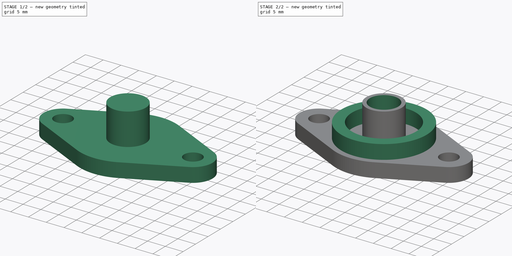
[diagram: build sequence overview — one tinted view per stage of 2, left to right]
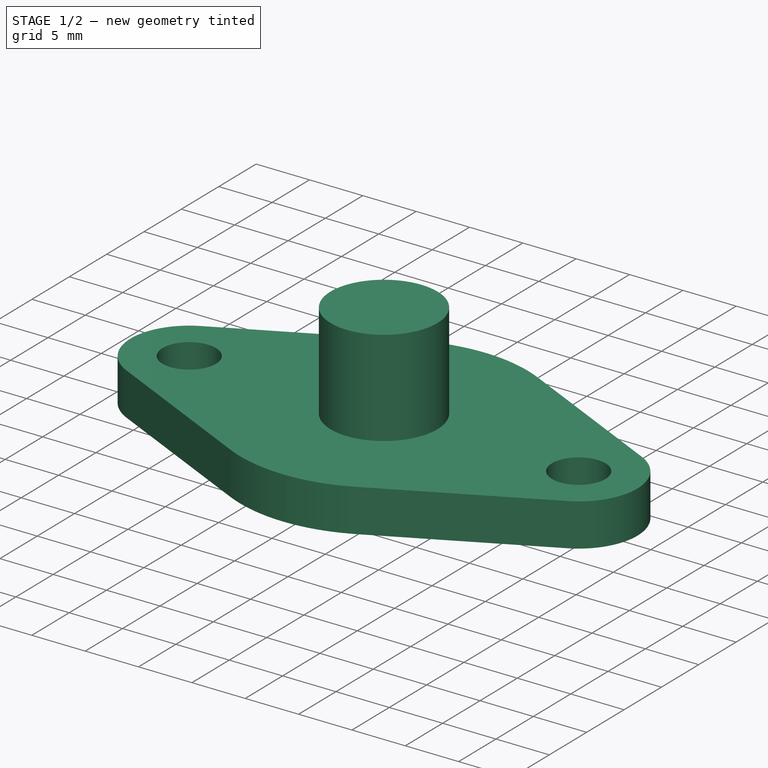
[diagram: stage 1 of 2 — iso view after this stage's code; geometry added in this stage tinted green]
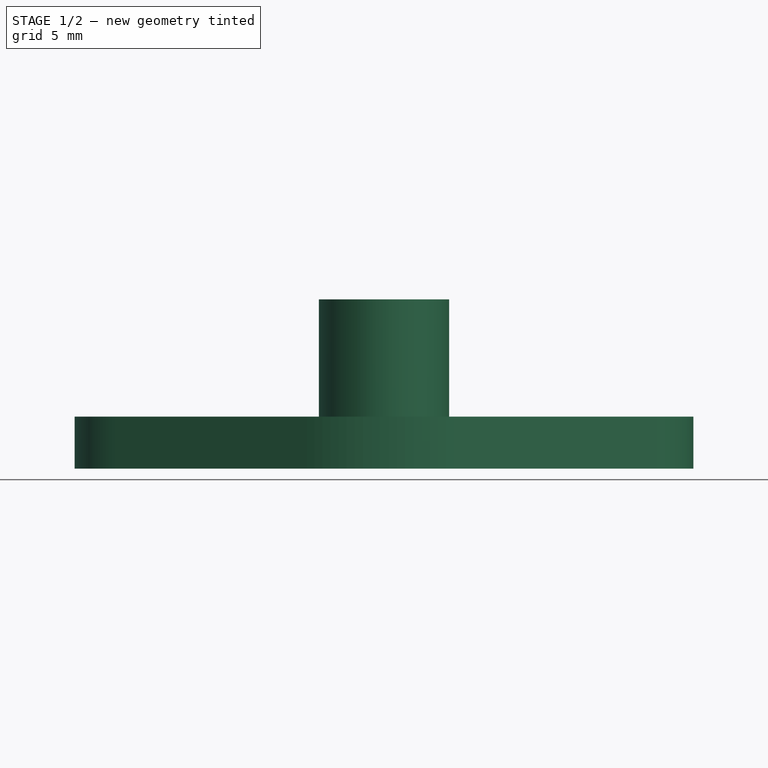
[diagram: stage 1 of 2 — front view after this stage's code; geometry added in this stage tinted green]
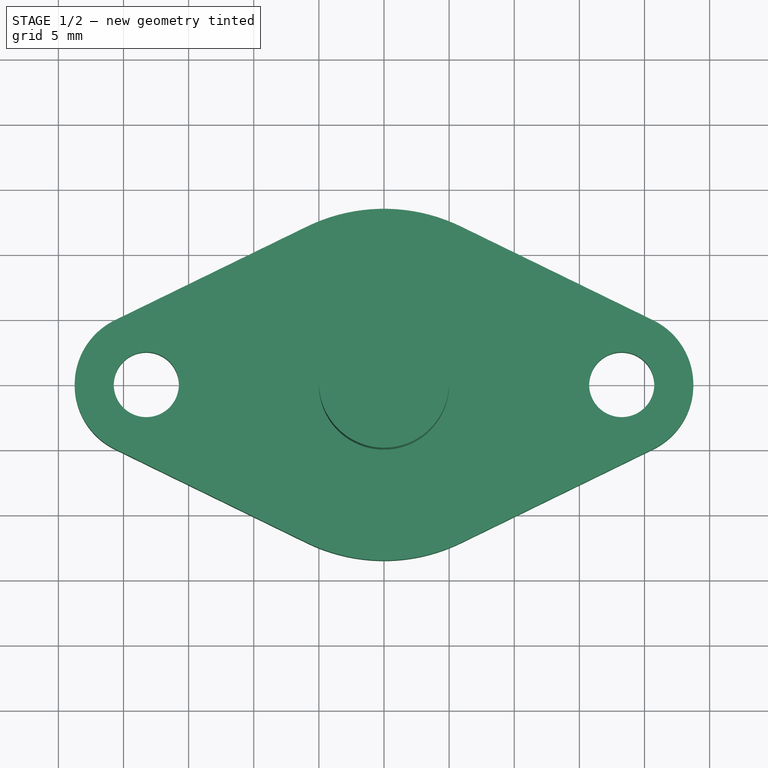
[diagram: stage 1 of 2 — top view after this stage's code; geometry added in this stage tinted green]
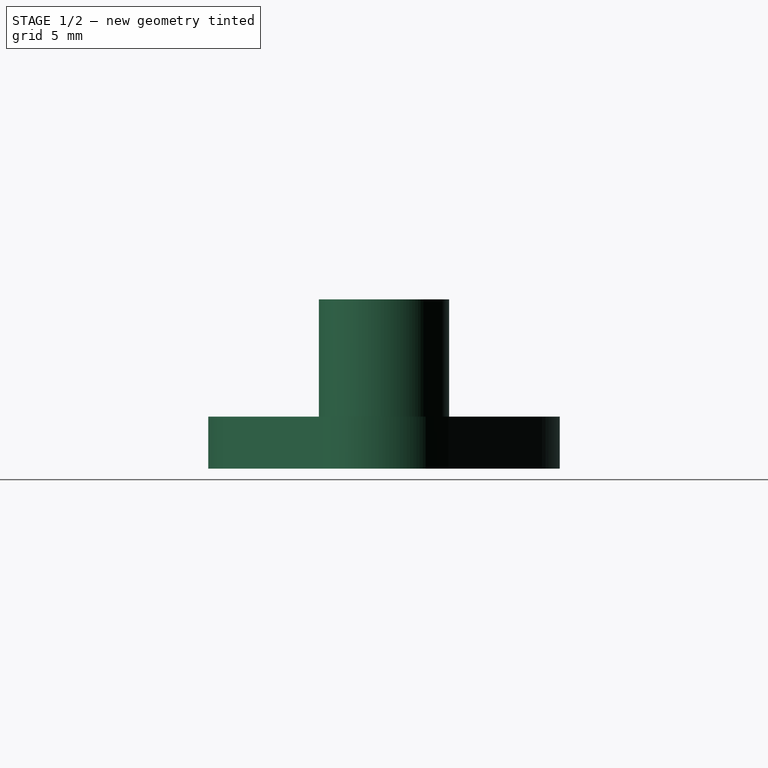
[diagram: stage 1 of 2 — right view after this stage's code; geometry added in this stage tinted green]
FCSTD DOCUMENT  (FreeCAD 0.18R14555 (Git shallow))
Label: pillow-bearing
License: All rights reserved
LicenseURL: http://en.wikipedia.org/wiki/All_rights_reserved
objects: Sketcher::SketchObject×4, PartDesign::Pad×3, PartDesign::Pocket×1, PartDesign::Body×1
note: 13 computed .brp shape members not serialized (recipe doc carries the construction recipe); baked Part::Feature solids carry a one-line shape summary decoded from their .brp

FEATURE [Sketcher::SketchObject] Sketch
  MapMode = 5
  Support = -> [XY_Plane]
  sketch-geometry (14):
    g0: Circle CenterX=-18.25 CenterY=0 CenterZ=0 NormalX=0 NormalY=0 NormalZ=1 AngleXU=0 Radius=2.5
    g1: Circle CenterX=18.25 CenterY=0 CenterZ=0 NormalX=0 NormalY=0 NormalZ=1 AngleXU=0 Radius=2.5
    g2: ArcOfCircle CenterX=-18.25 CenterY=0 CenterZ=0 NormalX=0 NormalY=0 NormalZ=1 AngleXU=0 Radius=5.5 StartAngle=2.02457 EndAngle=4.25862
    g3: ArcOfCircle CenterX=18.25 CenterY=0 CenterZ=0 NormalX=0 NormalY=0 NormalZ=1 AngleXU=0 Radius=5.5 StartAngle=5.16616 EndAngle=7.40021
    g4: ArcOfCircle CenterX=0 CenterY=0 CenterZ=0 NormalX=0 NormalY=0 NormalZ=1 AngleXU=0 Radius=13.5 StartAngle=1.11703 EndAngle=2.02457
    g5: ArcOfCircle CenterX=0 CenterY=0 CenterZ=0 NormalX=0 NormalY=0 NormalZ=1 AngleXU=0 Radius=13.5 StartAngle=4.25862 EndAngle=5.16616
    g6: LineSegment StartX=-20.661 StartY=4.94341 StartZ=0 EndX=-5.91781 EndY=12.1338 EndZ=0
    g7: LineSegment StartX=5.91781 StartY=12.1338 StartZ=0 EndX=20.661 EndY=4.94341 EndZ=0
    g8: LineSegment StartX=20.661 StartY=-4.94341 StartZ=0 EndX=5.91781 EndY=-12.1338 EndZ=0
    g9: LineSegment StartX=-5.91781 StartY=-12.1338 StartZ=0 EndX=-20.661 EndY=-4.94341 EndZ=0
    g10: LineSegment [constr] StartX=-5.91781 StartY=12.1338 StartZ=0 EndX=5.91781 EndY=12.1338 EndZ=0
    g11: LineSegment [constr] StartX=-5.91781 StartY=-12.1338 StartZ=0 EndX=5.91781 EndY=-12.1338 EndZ=0
    g12: LineSegment [constr] StartX=-18.25 StartY=0 StartZ=0 EndX=-20.661 EndY=4.94341 EndZ=0
    g13: LineSegment [constr] StartX=18.25 StartY=0 StartZ=0 EndX=20.661 EndY=4.94341 EndZ=0
  constraints (30):
    c: PointOnObject(g0,g-1)
    c: PointOnObject(g1,g-1)
    c: Equal(g1,g0)
    c: DistanceX(g0,g1) = 36.5
    c: Radius(g0) = 2.5
    c: Coincident(g2,g0)
    c: Coincident(g3,g1)
    c: Coincident(g4,g-1)
    c: Coincident(g5,g4)
    c: Tangent(g6,g2) = 1.5708
    c: Tangent(g6,g4) = 1.5708
    c: Tangent(g7,g4) = 1.5708
    c: Tangent(g7,g3) = 1.5708
    c: Tangent(g8,g3) = 1.5708
    c: Tangent(g8,g5) = 1.5708
    c: Tangent(g9,g5) = 1.5708
    c: Tangent(g9,g2) = 1.5708
    c: Coincident(g10,g4)
    c: Coincident(g10,g4)
    c: Horizontal(g10)
    c: Coincident(g11,g5)
    c: Coincident(g11,g5)
    c: Radius(g4) = 13.5
    c: Radius(g2) = 5.5
    c: Coincident(g12,g0)
    c: Coincident(g12,g2)
    c: Coincident(g13,g1)
    c: Coincident(g13,g3)
    c: Equal(g13,g12)
    c: Equal(g5,g4)
FEATURE [PartDesign::Pad] Pad
  Length = 4
  Length2 = 100
  Profile = -> Sketch
  Type = 0
FEATURE [Sketcher::SketchObject] Sketch001
  MapMode = 5
  Placement = pos=(0,0,4) rot=(0,0,1;0rad)
  Support = -> [Pad]
  sketch-geometry (1):
    g0: Circle CenterX=0 CenterY=0 CenterZ=0 NormalX=0 NormalY=0 NormalZ=1 AngleXU=0 Radius=5
  constraints (2):
    c: Radius(g0) = 5
    c: Coincident(g0,g-1)
FEATURE [PartDesign::Pad] Pad001
  BaseFeature = -> Pad
  Length = 9
  Length2 = 100
  Profile = -> Sketch001
  Type = 0
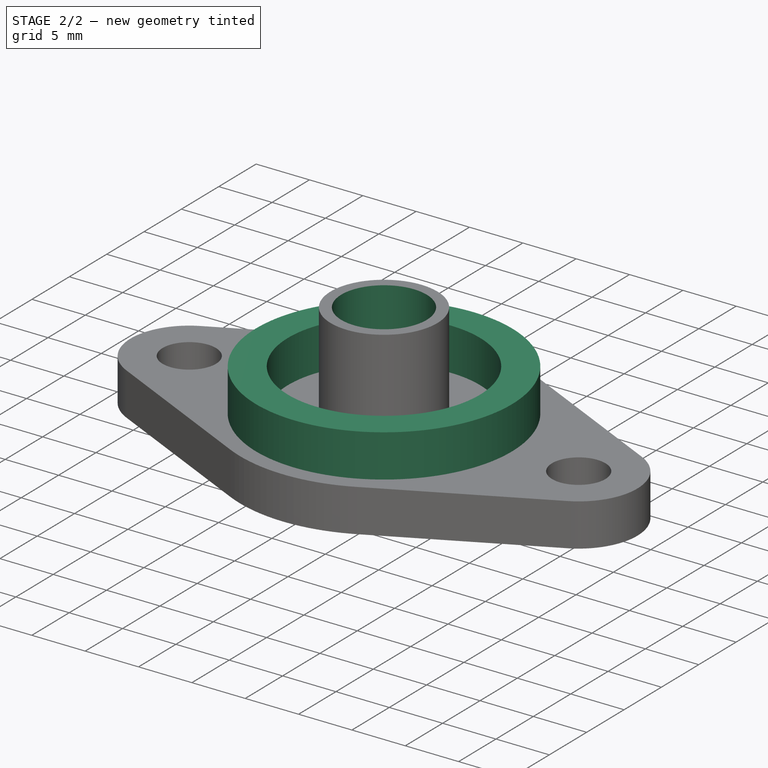
[diagram: stage 2 of 2 — iso view after this stage's code; geometry added in this stage tinted green]
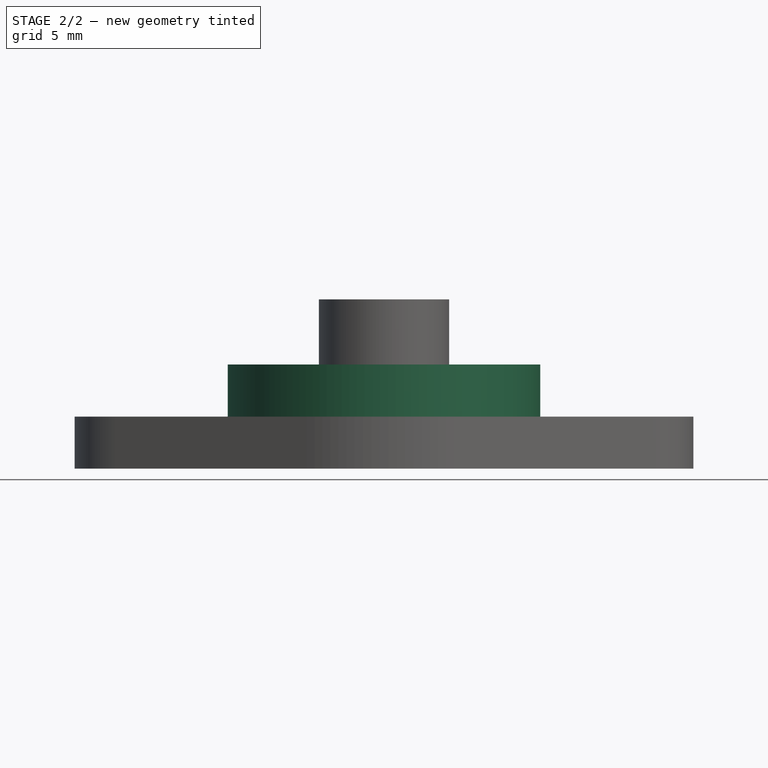
[diagram: stage 2 of 2 — front view after this stage's code; geometry added in this stage tinted green]
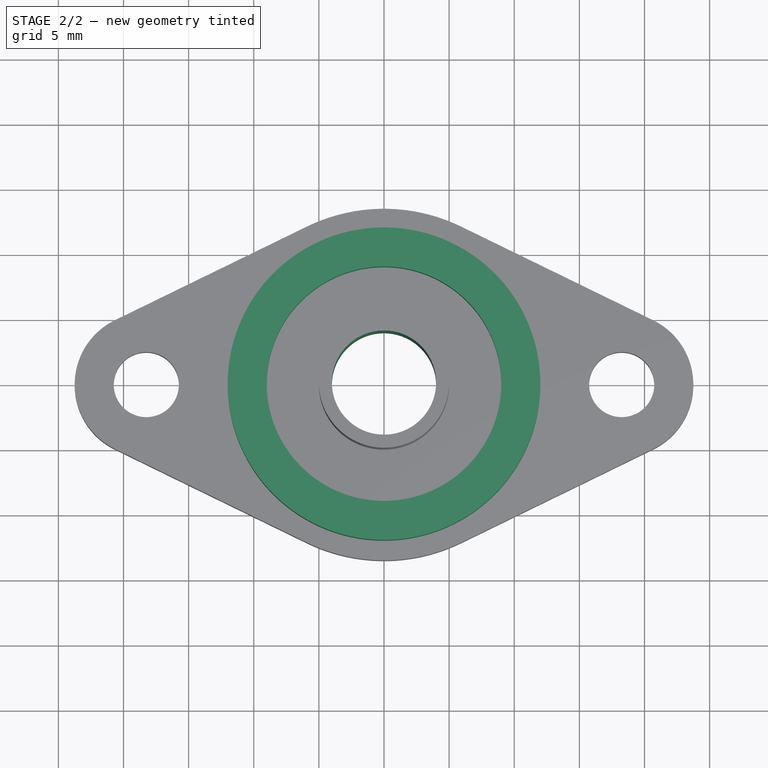
[diagram: stage 2 of 2 — top view after this stage's code; geometry added in this stage tinted green]
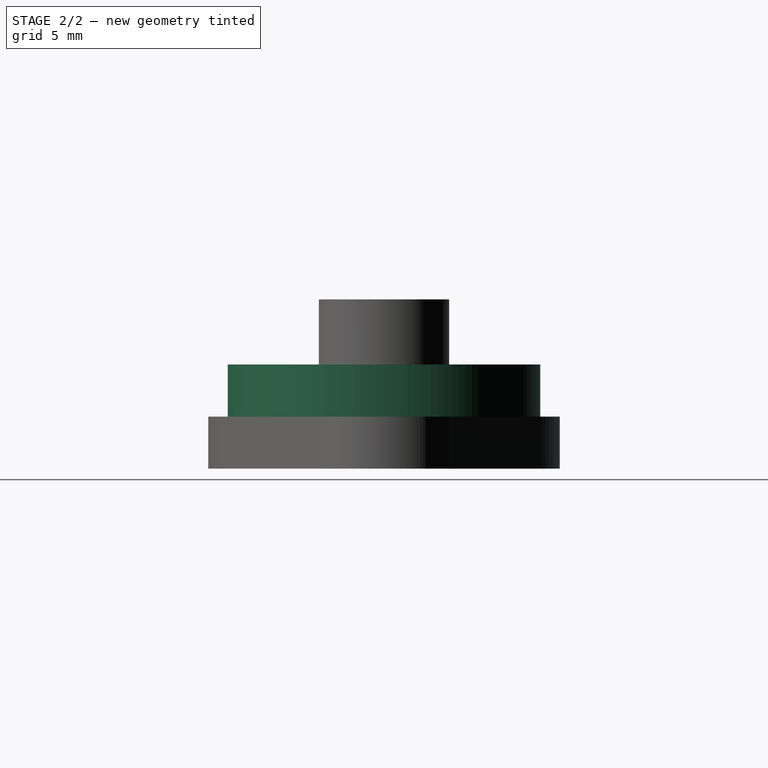
[diagram: stage 2 of 2 — right view after this stage's code; geometry added in this stage tinted green]
FEATURE [Sketcher::SketchObject] Sketch002
  MapMode = 5
  Placement = pos=(0,0,13) rot=(0,0,1;0rad)
  Support = -> [Pad001]
  sketch-geometry (1):
    g0: Circle CenterX=0 CenterY=0 CenterZ=0 NormalX=0 NormalY=0 NormalZ=1 AngleXU=0 Radius=4
  constraints (2):
    c: Coincident(g0,g-1)
    c: Radius(g0) = 4
FEATURE [PartDesign::Pocket] Pocket
  BaseFeature = -> Pad001
  Length = 5
  Length2 = 100
  Profile = -> Sketch002
  Type = 1
FEATURE [Sketcher::SketchObject] Sketch003
  MapMode = 5
  Placement = pos=(0,0,4) rot=(0,0,1;0rad)
  Support = -> [Pocket]
  sketch-geometry (2):
    g0: Circle CenterX=0 CenterY=0 CenterZ=0 NormalX=0 NormalY=0 NormalZ=1 AngleXU=0 Radius=9
    g1: Circle CenterX=0 CenterY=0 CenterZ=0 NormalX=0 NormalY=0 NormalZ=1 AngleXU=0 Radius=12
  constraints (4):
    c: Coincident(g0,g-1)
    c: Coincident(g1,g0)
    c: Radius(g0) = 9
    c: Radius(g1) = 12
FEATURE [PartDesign::Pad] Pad002
  BaseFeature = -> Pocket
  Length = 4
  Length2 = 100
  Profile = -> Sketch003
  Type = 0
FEATURE [PartDesign::Body] Body
  Group = -> [Sketch,Pad,Sketch001,Pad001,Sketch002,Pocket,Sketch003,Pad002]
  Origin = -> Origin
  Tip = -> Pad002
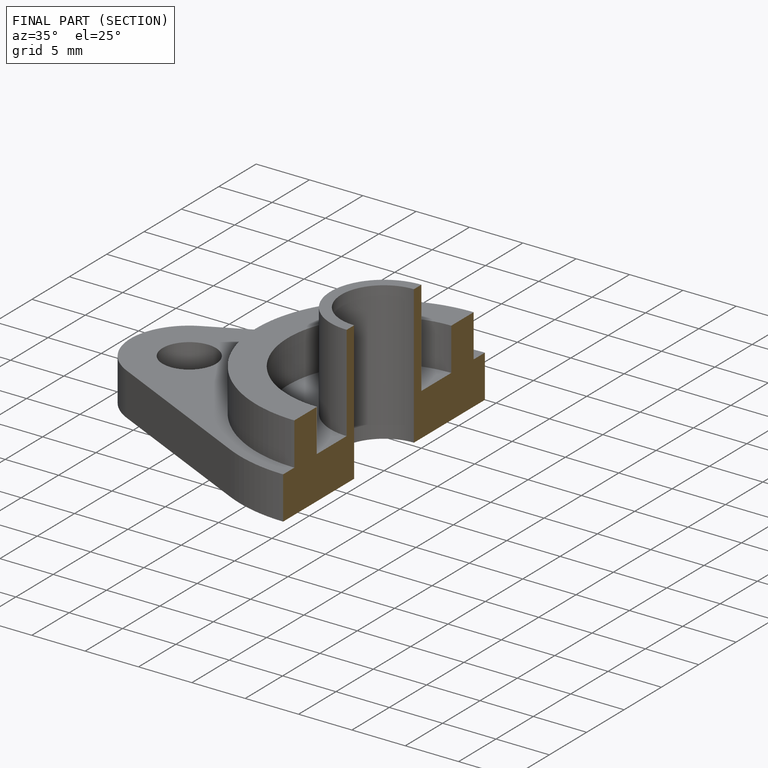
[diagram: finished part — half-section view (interior)]
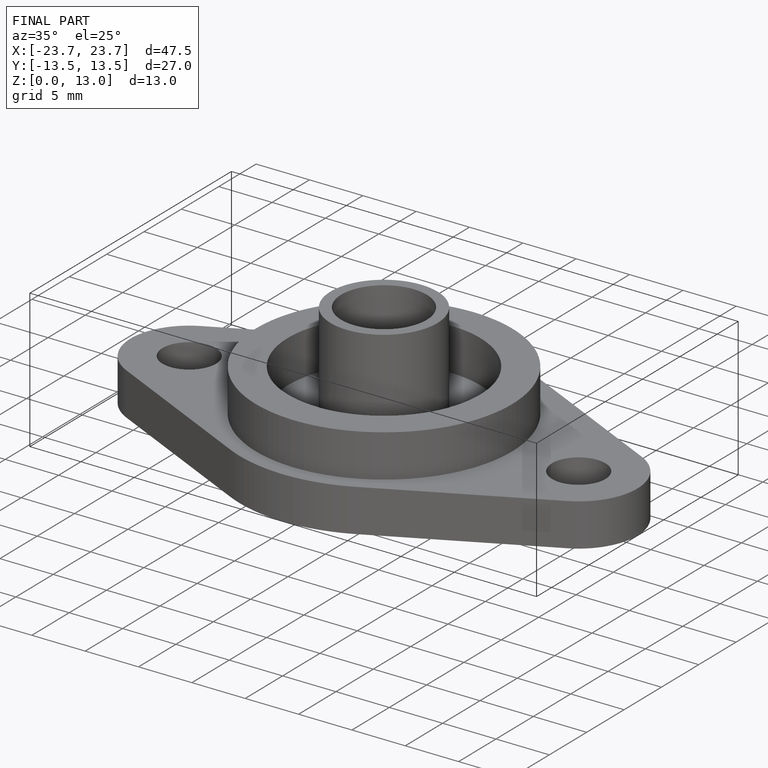
[diagram: finished part — iso view with bounding-box wireframe]
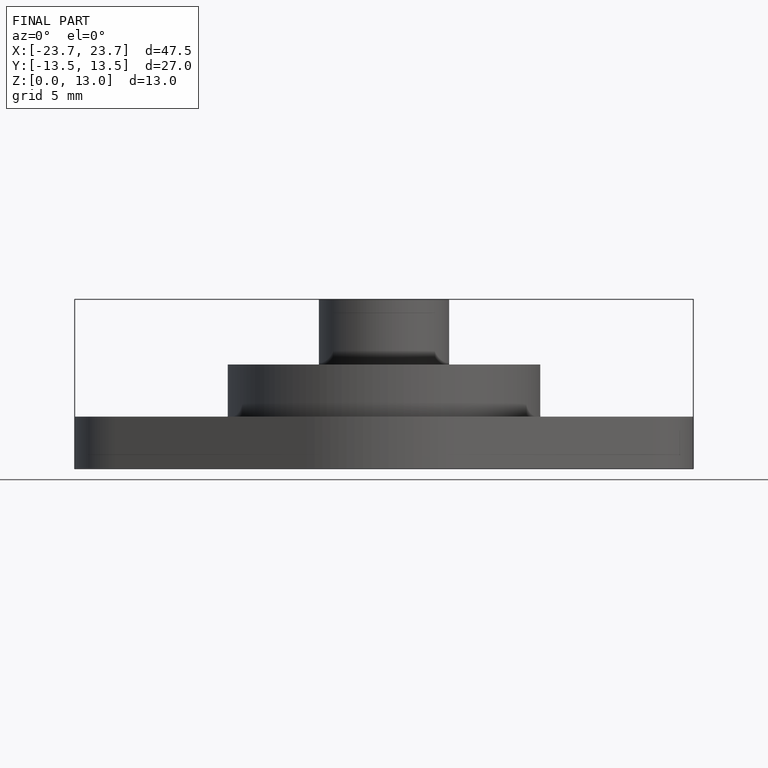
[diagram: finished part — front view with bounding-box wireframe]
